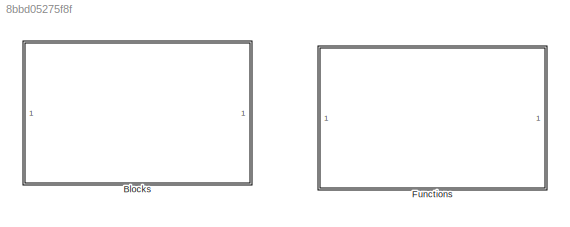
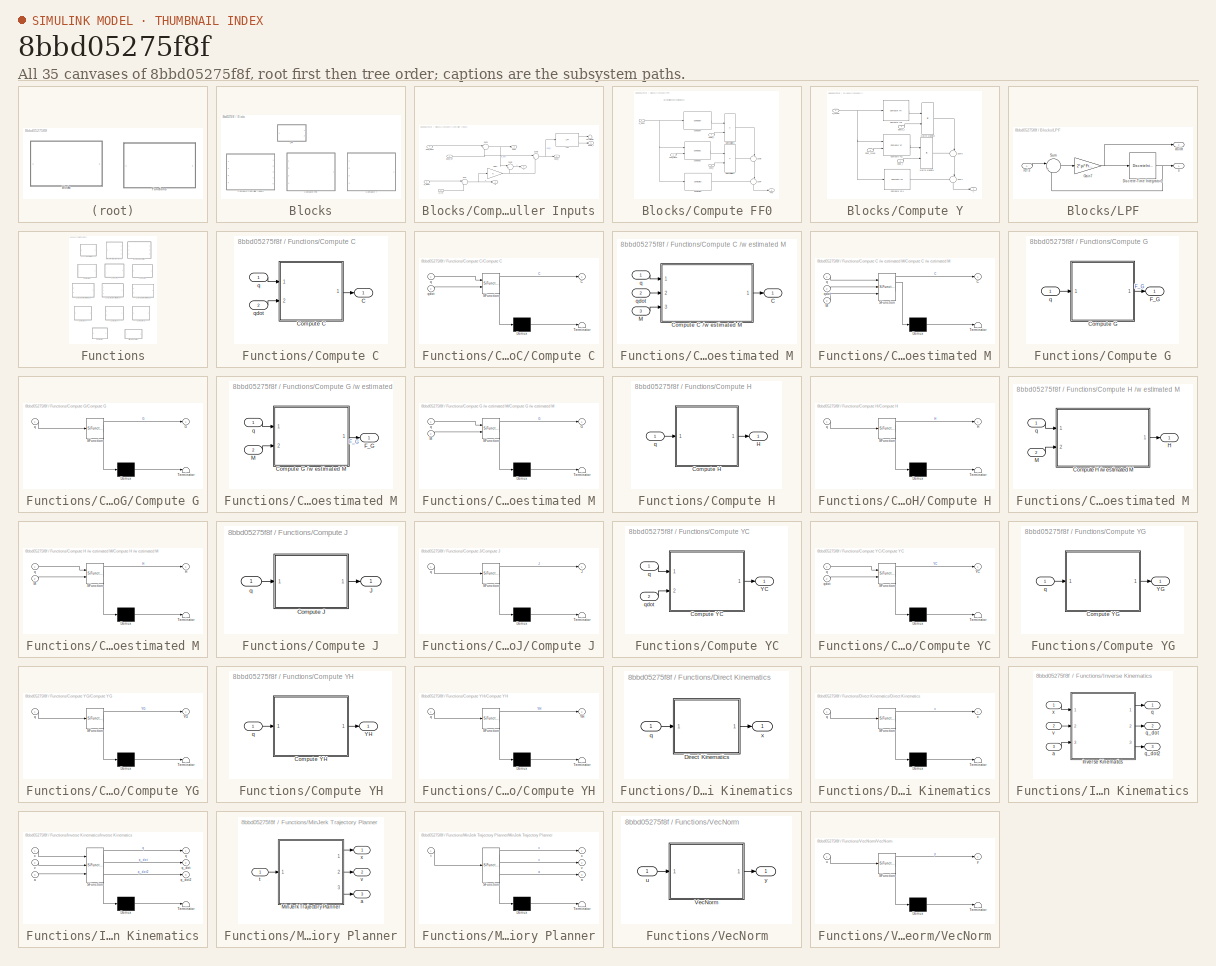
[diagram: thumbnail index - all 35 canvases of the model, root first then tree order]
MODEL slx_8bbd05275f8f
KIND library
CONFIG AbsTol = auto
CONFIG EnableMultiTasking = off
CONFIG FixedStep = auto
CONFIG MaxStep = auto
CONFIG MinStep = auto
CONFIG RelTol = 1e-3
CONFIG SampleTimeConstraint = Unconstrained
CONFIG SolverName = VariableStepAuto
CONFIG StartTime = 0.0
CONFIG StopTime = 10.0
BLOCK [SubSystem] Blocks
  Ports = []
  RequestExecContextInheritance = off
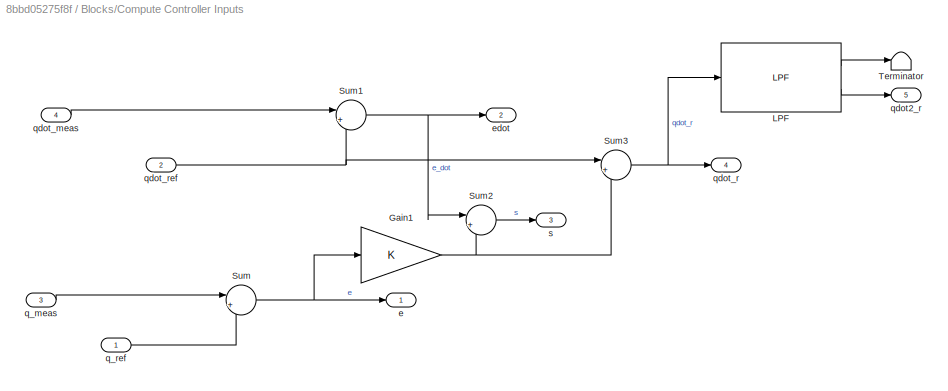
BLOCK [SubSystem] Blocks/Compute Controller Inputs
  Ports = [4, 5]
  RequestExecContextInheritance = off
  TreatAsAtomicUnit = on
BLOCK [Gain] Blocks/Compute Controller Inputs/Gain1
  Gain = K
  Multiplication = Matrix(K*u)
BLOCK [Reference] Blocks/Compute Controller Inputs/LPF  REF=$bdroot/Blocks/LPF
  Ports = [1, 2]
  SourceBlock = $bdroot/Blocks/LPF
BLOCK [Sum] Blocks/Compute Controller Inputs/Sum
  Inputs = |+-
  Ports = [2, 1]
BLOCK [Sum] Blocks/Compute Controller Inputs/Sum1
  Inputs = |+-
  Ports = [2, 1]
BLOCK [Sum] Blocks/Compute Controller Inputs/Sum2
  Inputs = |++
  Ports = [2, 1]
BLOCK [Sum] Blocks/Compute Controller Inputs/Sum3
  Inputs = |+-
  Ports = [2, 1]
BLOCK [Terminator] Blocks/Compute Controller Inputs/Terminator
BLOCK [Outport] Blocks/Compute Controller Inputs/e
BLOCK [Outport] Blocks/Compute Controller Inputs/edot
  Port = 2
BLOCK [Inport] Blocks/Compute Controller Inputs/q_meas
  Port = 3
  PortDimensions = 3
BLOCK [Inport] Blocks/Compute Controller Inputs/q_ref
  PortDimensions = 3
BLOCK [Outport] Blocks/Compute Controller Inputs/qdot2_r
  Port = 5
BLOCK [Inport] Blocks/Compute Controller Inputs/qdot_meas
  Port = 4
  PortDimensions = 3
BLOCK [Outport] Blocks/Compute Controller Inputs/qdot_r
  Port = 4
BLOCK [Inport] Blocks/Compute Controller Inputs/qdot_ref
  Port = 2
  PortDimensions = 3
BLOCK [Outport] Blocks/Compute Controller Inputs/s
  Port = 3
BLOCK [SubSystem] Blocks/Compute FF0
  Ports = [4, 1]
  RequestExecContextInheritance = off
  TreatAsAtomicUnit = on
BLOCK [Reference] Blocks/Compute FF0/Compute C  REF=$bdroot/Functions/Compute C
  Ports = [2, 1]
  SourceBlock = $bdroot/Functions/Compute C
BLOCK [Reference] Blocks/Compute FF0/Compute G  REF=$bdroot/Functions/Compute G
  Ports = [1, 1]
  SourceBlock = $bdroot/Functions/Compute G
BLOCK [Reference] Blocks/Compute FF0/Compute H  REF=$bdroot/Functions/Compute H
  Ports = [1, 1]
  SourceBlock = $bdroot/Functions/Compute H
BLOCK [Outport] Blocks/Compute FF0/FF0
BLOCK [Product] Blocks/Compute FF0/Matrix Multiply1
  Multiplication = Matrix(*)
  Ports = [2, 1]
BLOCK [Product] Blocks/Compute FF0/Matrix Multiply2
  Multiplication = Matrix(*)
  Ports = [2, 1]
BLOCK [Sum] Blocks/Compute FF0/Sum4
  Inputs = ++|
  NameLocation = left
  Ports = [2, 1]
BLOCK [Sum] Blocks/Compute FF0/Sum5
  Inputs = ++|
  NameLocation = left
  Ports = [2, 1]
BLOCK [Inport] Blocks/Compute FF0/q_meas
BLOCK [Inport] Blocks/Compute FF0/qdot2_r
  Port = 4
BLOCK [Inport] Blocks/Compute FF0/qdot_meas
  Port = 2
BLOCK [Inport] Blocks/Compute FF0/qdot_r
  Port = 3
BLOCK [SubSystem] Blocks/Compute Y
  Ports = [4, 1]
  RequestExecContextInheritance = off
  TreatAsAtomicUnit = on
BLOCK [Reference] Blocks/Compute Y/Compute YC1  REF=$bdroot/Functions/Compute YC
  Ports = [2, 1]
  SourceBlock = $bdroot/Functions/Compute YC
BLOCK [Reference] Blocks/Compute Y/Compute YG1  REF=$bdroot/Functions/Compute YG
  Ports = [1, 1]
  SourceBlock = $bdroot/Functions/Compute YG
BLOCK [Reference] Blocks/Compute Y/Compute YH1  REF=$bdroot/Functions/Compute YH
  Ports = [1, 1]
  SourceBlock = $bdroot/Functions/Compute YH
BLOCK [Product] Blocks/Compute Y/Matrix Multiply1
  Multiplication = Matrix(*)
  Ports = [2, 1]
BLOCK [Product] Blocks/Compute Y/Matrix Multiply2
  Multiplication = Matrix(*)
  Ports = [2, 1]
BLOCK [Sum] Blocks/Compute Y/Sum4
  Inputs = ++|
  NameLocation = left
  Ports = [2, 1]
BLOCK [Sum] Blocks/Compute Y/Sum5
  Inputs = ++|
  NameLocation = left
  Ports = [2, 1]
BLOCK [Outport] Blocks/Compute Y/Y
BLOCK [Inport] Blocks/Compute Y/q_meas
BLOCK [Inport] Blocks/Compute Y/qdot2_r
  Port = 4
BLOCK [Inport] Blocks/Compute Y/qdot_meas
  Port = 2
BLOCK [Inport] Blocks/Compute Y/qdot_r
  Port = 3
BLOCK [SubSystem] Blocks/LPF
  Ports = [1, 2]
  RequestExecContextInheritance = off
BLOCK [DiscreteIntegrator] Blocks/LPF/Discrete-Time Integrator1
  ICPrevOutput = DiscIntNeverNeededParam
  ICPrevScaledInput = DiscIntNeverNeededParam
  InitialCondition = s0
  InitialConditionSetting = Auto
  Ports = [1, 1]
  SampleTime = -1
BLOCK [Gain] Blocks/LPF/Gain7
  Gain = 2*pi*Freq
BLOCK [Sum] Blocks/LPF/Sum
  Inputs = |+-
  Ports = [2, 1]
BLOCK [Outport] Blocks/LPF/ds//dt
  Port = 2
  VectorParamsAs1DForOutWhenUnconnected = off
BLOCK [Inport] Blocks/LPF/ref s
BLOCK [Outport] Blocks/LPF/s
  VectorParamsAs1DForOutWhenUnconnected = off
BLOCK [SubSystem] Functions
  Ports = []
  RequestExecContextInheritance = off
BLOCK [SubSystem] Functions/Compute C
  Ports = [2, 1]
  RequestExecContextInheritance = off
BLOCK [SubSystem] Functions/Compute C //w estimated M
  Ports = [3, 1]
  RequestExecContextInheritance = off
BLOCK [Outport] Functions/Compute C //w estimated M/C
BLOCK [SubSystem] Functions/Compute C //w estimated M/Compute C //w estimated M
  ErrorFcn = Stateflow.Translate.translate
  PermitHierarchicalResolution = ExplicitOnly
  Ports = [3, 1]
  RequestExecContextInheritance = off
  SFBlockType = MATLAB Function
  TreatAsAtomicUnit = on
BLOCK [Demux] Functions/Compute C //w estimated M/Compute C //w estimated M/ Demux 
  Outputs = 1
  Ports = [1, 1]
BLOCK [S-Function] Functions/Compute C //w estimated M/Compute C //w estimated M/ SFunction 
  EnableBusSupport = off
  FunctionName = sf_sfun
  PortCounts = [3 2]
  Ports = [3, 2]
  SFcnIsStateOwnerBlock = off
  SFunctionDeploymentMode = off
  Tag = Stateflow S-Function 3
BLOCK [Terminator] Functions/Compute C //w estimated M/Compute C //w estimated M/ Terminator 
BLOCK [Outport] Functions/Compute C //w estimated M/Compute C //w estimated M/C
BLOCK [Inport] Functions/Compute C //w estimated M/Compute C //w estimated M/M
  Port = 3
BLOCK [Inport] Functions/Compute C //w estimated M/Compute C //w estimated M/q
BLOCK [Inport] Functions/Compute C //w estimated M/Compute C //w estimated M/qdot
  Port = 2
BLOCK [Inport] Functions/Compute C //w estimated M/M
  Port = 3
BLOCK [Inport] Functions/Compute C //w estimated M/q
BLOCK [Inport] Functions/Compute C //w estimated M/qdot
  Port = 2
BLOCK [Outport] Functions/Compute C/C
BLOCK [SubSystem] Functions/Compute C/Compute C
  ErrorFcn = Stateflow.Translate.translate
  PermitHierarchicalResolution = ExplicitOnly
  Ports = [2, 1]
  RequestExecContextInheritance = off
  SFBlockType = MATLAB Function
  TreatAsAtomicUnit = on
BLOCK [Demux] Functions/Compute C/Compute C/ Demux 
  Outputs = 1
  Ports = [1, 1]
BLOCK [S-Function] Functions/Compute C/Compute C/ SFunction 
  EnableBusSupport = off
  FunctionName = sf_sfun
  Parameters = M
  PortCounts = [2 2]
  Ports = [2, 2]
  SFcnIsStateOwnerBlock = off
  SFunctionDeploymentMode = off
  Tag = Stateflow S-Function 13
BLOCK [Terminator] Functions/Compute C/Compute C/ Terminator 
BLOCK [Outport] Functions/Compute C/Compute C/C
BLOCK [Inport] Functions/Compute C/Compute C/q
BLOCK [Inport] Functions/Compute C/Compute C/qdot
  Port = 2
BLOCK [Inport] Functions/Compute C/q
BLOCK [Inport] Functions/Compute C/qdot
  Port = 2
BLOCK [SubSystem] Functions/Compute G
  Ports = [1, 1]
  RequestExecContextInheritance = off
BLOCK [SubSystem] Functions/Compute G //w estimated M
  Ports = [2, 1]
  RequestExecContextInheritance = off
BLOCK [SubSystem] Functions/Compute G //w estimated M/Compute G //w estimated M
  ErrorFcn = Stateflow.Translate.translate
  PermitHierarchicalResolution = ExplicitOnly
  Ports = [2, 1]
  RequestExecContextInheritance = off
  SFBlockType = MATLAB Function
  TreatAsAtomicUnit = on
BLOCK [Demux] Functions/Compute G //w estimated M/Compute G //w estimated M/ Demux 
  Outputs = 1
  Ports = [1, 1]
BLOCK [S-Function] Functions/Compute G //w estimated M/Compute G //w estimated M/ SFunction 
  EnableBusSupport = off
  FunctionName = sf_sfun
  PortCounts = [2 2]
  Ports = [2, 2]
  SFcnIsStateOwnerBlock = off
  SFunctionDeploymentMode = off
  Tag = Stateflow S-Function 5
BLOCK [Terminator] Functions/Compute G //w estimated M/Compute G //w estimated M/ Terminator 
BLOCK [Outport] Functions/Compute G //w estimated M/Compute G //w estimated M/G
BLOCK [Inport] Functions/Compute G //w estimated M/Compute G //w estimated M/M
  Port = 2
BLOCK [Inport] Functions/Compute G //w estimated M/Compute G //w estimated M/q
BLOCK [Outport] Functions/Compute G //w estimated M/F_G
BLOCK [Inport] Functions/Compute G //w estimated M/M
  Port = 2
BLOCK [Inport] Functions/Compute G //w estimated M/q
BLOCK [SubSystem] Functions/Compute G/Compute G
  ErrorFcn = Stateflow.Translate.translate
  PermitHierarchicalResolution = ExplicitOnly
  Ports = [1, 1]
  RequestExecContextInheritance = off
  SFBlockType = MATLAB Function
  TreatAsAtomicUnit = on
BLOCK [Demux] Functions/Compute G/Compute G/ Demux 
  Outputs = 1
  Ports = [1, 1]
BLOCK [S-Function] Functions/Compute G/Compute G/ SFunction 
  EnableBusSupport = off
  FunctionName = sf_sfun
  Parameters = M
  PortCounts = [1 2]
  Ports = [1, 2]
  SFcnIsStateOwnerBlock = off
  SFunctionDeploymentMode = off
  Tag = Stateflow S-Function 14
BLOCK [Terminator] Functions/Compute G/Compute G/ Terminator 
BLOCK [Outport] Functions/Compute G/Compute G/G
BLOCK [Inport] Functions/Compute G/Compute G/q
BLOCK [Outport] Functions/Compute G/F_G
BLOCK [Inport] Functions/Compute G/q
BLOCK [SubSystem] Functions/Compute H
  Ports = [1, 1]
  RequestExecContextInheritance = off
BLOCK [SubSystem] Functions/Compute H //w estimated M
  Ports = [2, 1]
  RequestExecContextInheritance = off
BLOCK [SubSystem] Functions/Compute H //w estimated M/Compute H //w estimated M
  ErrorFcn = Stateflow.Translate.translate
  PermitHierarchicalResolution = ExplicitOnly
  Ports = [2, 1]
  RequestExecContextInheritance = off
  SFBlockType = MATLAB Function
  TreatAsAtomicUnit = on
BLOCK [Demux] Functions/Compute H //w estimated M/Compute H //w estimated M/ Demux 
  Outputs = 1
  Ports = [1, 1]
BLOCK [S-Function] Functions/Compute H //w estimated M/Compute H //w estimated M/ SFunction 
  EnableBusSupport = off
  FunctionName = sf_sfun
  PortCounts = [2 2]
  Ports = [2, 2]
  SFcnIsStateOwnerBlock = off
  SFunctionDeploymentMode = off
  Tag = Stateflow S-Function 6
BLOCK [Terminator] Functions/Compute H //w estimated M/Compute H //w estimated M/ Terminator 
BLOCK [Outport] Functions/Compute H //w estimated M/Compute H //w estimated M/H
BLOCK [Inport] Functions/Compute H //w estimated M/Compute H //w estimated M/M
  Port = 2
BLOCK [Inport] Functions/Compute H //w estimated M/Compute H //w estimated M/q
BLOCK [Outport] Functions/Compute H //w estimated M/H
BLOCK [Inport] Functions/Compute H //w estimated M/M
  Port = 2
BLOCK [Inport] Functions/Compute H //w estimated M/q
BLOCK [SubSystem] Functions/Compute H/Compute H
  ErrorFcn = Stateflow.Translate.translate
  PermitHierarchicalResolution = ExplicitOnly
  Ports = [1, 1]
  RequestExecContextInheritance = off
  SFBlockType = MATLAB Function
  TreatAsAtomicUnit = on
BLOCK [Demux] Functions/Compute H/Compute H/ Demux 
  Outputs = 1
  Ports = [1, 1]
BLOCK [S-Function] Functions/Compute H/Compute H/ SFunction 
  EnableBusSupport = off
  FunctionName = sf_sfun
  Parameters = M
  PortCounts = [1 2]
  Ports = [1, 2]
  SFcnIsStateOwnerBlock = off
  SFunctionDeploymentMode = off
  Tag = Stateflow S-Function 15
BLOCK [Terminator] Functions/Compute H/Compute H/ Terminator 
BLOCK [Outport] Functions/Compute H/Compute H/H
BLOCK [Inport] Functions/Compute H/Compute H/q
BLOCK [Outport] Functions/Compute H/H
BLOCK [Inport] Functions/Compute H/q
BLOCK [SubSystem] Functions/Compute J
  Ports = [1, 1]
  RequestExecContextInheritance = off
BLOCK [SubSystem] Functions/Compute J/Compute J
  ErrorFcn = Stateflow.Translate.translate
  PermitHierarchicalResolution = ExplicitOnly
  Ports = [1, 1]
  RequestExecContextInheritance = off
  SFBlockType = MATLAB Function
  TreatAsAtomicUnit = on
BLOCK [Demux] Functions/Compute J/Compute J/ Demux 
  Outputs = 1
  Ports = [1, 1]
BLOCK [S-Function] Functions/Compute J/Compute J/ SFunction 
  EnableBusSupport = off
  FunctionName = sf_sfun
  PortCounts = [1 2]
  Ports = [1, 2]
  SFcnIsStateOwnerBlock = off
  SFunctionDeploymentMode = off
  Tag = Stateflow S-Function 4
BLOCK [Terminator] Functions/Compute J/Compute J/ Terminator 
BLOCK [Outport] Functions/Compute J/Compute J/J
BLOCK [Inport] Functions/Compute J/Compute J/q
BLOCK [Outport] Functions/Compute J/J
BLOCK [Inport] Functions/Compute J/q
BLOCK [SubSystem] Functions/Compute YC
  Ports = [2, 1]
  RequestExecContextInheritance = off
BLOCK [SubSystem] Functions/Compute YC/Compute YC
  ErrorFcn = Stateflow.Translate.translate
  PermitHierarchicalResolution = ExplicitOnly
  Ports = [2, 1]
  RequestExecContextInheritance = off
  SFBlockType = MATLAB Function
  TreatAsAtomicUnit = on
BLOCK [Demux] Functions/Compute YC/Compute YC/ Demux 
  Outputs = 1
  Ports = [1, 1]
BLOCK [S-Function] Functions/Compute YC/Compute YC/ SFunction 
  EnableBusSupport = off
  FunctionName = sf_sfun
  PortCounts = [2 2]
  Ports = [2, 2]
  SFcnIsStateOwnerBlock = off
  SFunctionDeploymentMode = off
  Tag = Stateflow S-Function 9
BLOCK [Terminator] Functions/Compute YC/Compute YC/ Terminator 
BLOCK [Outport] Functions/Compute YC/Compute YC/YC
BLOCK [Inport] Functions/Compute YC/Compute YC/q
BLOCK [Inport] Functions/Compute YC/Compute YC/qdot
  Port = 2
BLOCK [Outport] Functions/Compute YC/YC
BLOCK [Inport] Functions/Compute YC/q
BLOCK [Inport] Functions/Compute YC/qdot
  Port = 2
BLOCK [SubSystem] Functions/Compute YG
  Ports = [1, 1]
  RequestExecContextInheritance = off
BLOCK [SubSystem] Functions/Compute YG/Compute YG
  ErrorFcn = Stateflow.Translate.translate
  PermitHierarchicalResolution = ExplicitOnly
  Ports = [1, 1]
  RequestExecContextInheritance = off
  SFBlockType = MATLAB Function
  TreatAsAtomicUnit = on
BLOCK [Demux] Functions/Compute YG/Compute YG/ Demux 
  Outputs = 1
  Ports = [1, 1]
BLOCK [S-Function] Functions/Compute YG/Compute YG/ SFunction 
  EnableBusSupport = off
  FunctionName = sf_sfun
  PortCounts = [1 2]
  Ports = [1, 2]
  SFcnIsStateOwnerBlock = off
  SFunctionDeploymentMode = off
  Tag = Stateflow S-Function 10
BLOCK [Terminator] Functions/Compute YG/Compute YG/ Terminator 
BLOCK [Outport] Functions/Compute YG/Compute YG/YG
BLOCK [Inport] Functions/Compute YG/Compute YG/q
BLOCK [Outport] Functions/Compute YG/YG
BLOCK [Inport] Functions/Compute YG/q
BLOCK [SubSystem] Functions/Compute YH
  Ports = [1, 1]
  RequestExecContextInheritance = off
BLOCK [SubSystem] Functions/Compute YH/Compute YH
  ErrorFcn = Stateflow.Translate.translate
  PermitHierarchicalResolution = ExplicitOnly
  Ports = [1, 1]
  RequestExecContextInheritance = off
  SFBlockType = MATLAB Function
  TreatAsAtomicUnit = on
BLOCK [Demux] Functions/Compute YH/Compute YH/ Demux 
  Outputs = 1
  Ports = [1, 1]
BLOCK [S-Function] Functions/Compute YH/Compute YH/ SFunction 
  EnableBusSupport = off
  FunctionName = sf_sfun
  PortCounts = [1 2]
  Ports = [1, 2]
  SFcnIsStateOwnerBlock = off
  SFunctionDeploymentMode = off
  Tag = Stateflow S-Function 7
BLOCK [Terminator] Functions/Compute YH/Compute YH/ Terminator 
BLOCK [Outport] Functions/Compute YH/Compute YH/YH
BLOCK [Inport] Functions/Compute YH/Compute YH/q
BLOCK [Outport] Functions/Compute YH/YH
BLOCK [Inport] Functions/Compute YH/q
BLOCK [SubSystem] Functions/Direct Kinematics
  Ports = [1, 1]
  RequestExecContextInheritance = off
BLOCK [SubSystem] Functions/Direct Kinematics/Direct Kinematics
  ErrorFcn = Stateflow.Translate.translate
  PermitHierarchicalResolution = ExplicitOnly
  Ports = [1, 1]
  RequestExecContextInheritance = off
  SFBlockType = MATLAB Function
  TreatAsAtomicUnit = on
BLOCK [Demux] Functions/Direct Kinematics/Direct Kinematics/ Demux 
  Outputs = 1
  Ports = [1, 1]
BLOCK [S-Function] Functions/Direct Kinematics/Direct Kinematics/ SFunction 
  EnableBusSupport = off
  FunctionName = sf_sfun
  PortCounts = [1 2]
  Ports = [1, 2]
  SFcnIsStateOwnerBlock = off
  SFunctionDeploymentMode = off
  Tag = Stateflow S-Function 8
BLOCK [Terminator] Functions/Direct Kinematics/Direct Kinematics/ Terminator 
BLOCK [Inport] Functions/Direct Kinematics/Direct Kinematics/q
BLOCK [Outport] Functions/Direct Kinematics/Direct Kinematics/x
BLOCK [Inport] Functions/Direct Kinematics/q
BLOCK [Outport] Functions/Direct Kinematics/x
BLOCK [SubSystem] Functions/Inverse Kinematics
  Ports = [3, 3]
  RequestExecContextInheritance = off
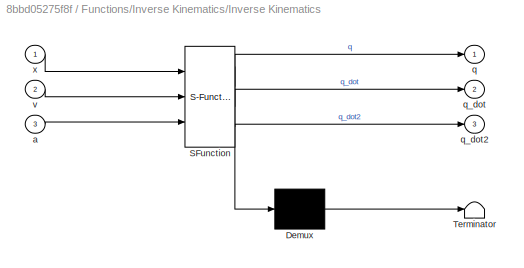
BLOCK [SubSystem] Functions/Inverse Kinematics/Inverse Kinematics
  ErrorFcn = Stateflow.Translate.translate
  PermitHierarchicalResolution = ExplicitOnly
  Ports = [3, 3]
  RequestExecContextInheritance = off
  SFBlockType = MATLAB Function
  TreatAsAtomicUnit = on
BLOCK [Demux] Functions/Inverse Kinematics/Inverse Kinematics/ Demux 
  Outputs = 1
  Ports = [1, 1]
BLOCK [S-Function] Functions/Inverse Kinematics/Inverse Kinematics/ SFunction 
  EnableBusSupport = off
  FunctionName = sf_sfun
  Parameters = H,L,elbows
  PortCounts = [3 4]
  Ports = [3, 4]
  SFcnIsStateOwnerBlock = off
  SFunctionDeploymentMode = off
  Tag = Stateflow S-Function 12
BLOCK [Terminator] Functions/Inverse Kinematics/Inverse Kinematics/ Terminator 
BLOCK [Inport] Functions/Inverse Kinematics/Inverse Kinematics/a
  Port = 3
BLOCK [Outport] Functions/Inverse Kinematics/Inverse Kinematics/q
BLOCK [Outport] Functions/Inverse Kinematics/Inverse Kinematics/q_dot
  Port = 2
BLOCK [Outport] Functions/Inverse Kinematics/Inverse Kinematics/q_dot2
  Port = 3
BLOCK [Inport] Functions/Inverse Kinematics/Inverse Kinematics/v
  Port = 2
BLOCK [Inport] Functions/Inverse Kinematics/Inverse Kinematics/x
BLOCK [Inport] Functions/Inverse Kinematics/a
  Port = 3
BLOCK [Outport] Functions/Inverse Kinematics/q
BLOCK [Outport] Functions/Inverse Kinematics/q_dot
  Port = 2
BLOCK [Outport] Functions/Inverse Kinematics/q_dot2
  Port = 3
BLOCK [Inport] Functions/Inverse Kinematics/v
  Port = 2
BLOCK [Inport] Functions/Inverse Kinematics/x
BLOCK [SubSystem] Functions/MinJerk Trajectory Planner
  Ports = [1, 3]
  RequestExecContextInheritance = off
BLOCK [SubSystem] Functions/MinJerk Trajectory Planner/MinJerk Trajectory Planner
  ErrorFcn = Stateflow.Translate.translate
  PermitHierarchicalResolution = ExplicitOnly
  Ports = [1, 3]
  RequestExecContextInheritance = off
  SFBlockType = MATLAB Function
  TreatAsAtomicUnit = on
BLOCK [Demux] Functions/MinJerk Trajectory Planner/MinJerk Trajectory Planner/ Demux 
  Outputs = 1
  Ports = [1, 1]
BLOCK [S-Function] Functions/MinJerk Trajectory Planner/MinJerk Trajectory Planner/ SFunction 
  EnableBusSupport = off
  FunctionName = sf_sfun
  Parameters = P0,Pf,T
  PortCounts = [1 4]
  Ports = [1, 4]
  SFcnIsStateOwnerBlock = off
  SFunctionDeploymentMode = off
  Tag = Stateflow S-Function 11
BLOCK [Terminator] Functions/MinJerk Trajectory Planner/MinJerk Trajectory Planner/ Terminator 
BLOCK [Outport] Functions/MinJerk Trajectory Planner/MinJerk Trajectory Planner/a
  Port = 3
BLOCK [Inport] Functions/MinJerk Trajectory Planner/MinJerk Trajectory Planner/t
BLOCK [Outport] Functions/MinJerk Trajectory Planner/MinJerk Trajectory Planner/v
  Port = 2
BLOCK [Outport] Functions/MinJerk Trajectory Planner/MinJerk Trajectory Planner/x
BLOCK [Outport] Functions/MinJerk Trajectory Planner/a
  Port = 3
BLOCK [Inport] Functions/MinJerk Trajectory Planner/t
BLOCK [Outport] Functions/MinJerk Trajectory Planner/v
  Port = 2
BLOCK [Outport] Functions/MinJerk Trajectory Planner/x
BLOCK [SubSystem] Functions/VecNorm
  Ports = [1, 1]
  RequestExecContextInheritance = off
BLOCK [SubSystem] Functions/VecNorm/VecNorm
  ErrorFcn = Stateflow.Translate.translate
  PermitHierarchicalResolution = ExplicitOnly
  Ports = [1, 1]
  RequestExecContextInheritance = off
  SFBlockType = MATLAB Function
  TreatAsAtomicUnit = on
BLOCK [Demux] Functions/VecNorm/VecNorm/ Demux 
  Outputs = 1
  Ports = [1, 1]
BLOCK [S-Function] Functions/VecNorm/VecNorm/ SFunction 
  EnableBusSupport = off
  FunctionName = sf_sfun
  PortCounts = [1 2]
  Ports = [1, 2]
  SFcnIsStateOwnerBlock = off
  SFunctionDeploymentMode = off
  Tag = Stateflow S-Function 1
BLOCK [Terminator] Functions/VecNorm/VecNorm/ Terminator 
BLOCK [Inport] Functions/VecNorm/VecNorm/u
BLOCK [Outport] Functions/VecNorm/VecNorm/y
BLOCK [Inport] Functions/VecNorm/u
BLOCK [Outport] Functions/VecNorm/y
ANNOTATION Blocks/Compute FF0: M == 0 in all these dynamic blocks
NET Blocks/Compute Controller Inputs/Gain1:1 -> Blocks/Compute Controller Inputs/Sum2:2, Blocks/Compute Controller Inputs/Sum3:2
LINE Blocks/Compute Controller Inputs/LPF:1 -> Blocks/Compute Controller Inputs/Terminator:1
LINE Blocks/Compute Controller Inputs/LPF:2 -> Blocks/Compute Controller Inputs/qdot2_r:1
NET Blocks/Compute Controller Inputs/Sum1:1 -> Blocks/Compute Controller Inputs/Sum2:1, Blocks/Compute Controller Inputs/edot:1
LINE Blocks/Compute Controller Inputs/Sum2:1 -> Blocks/Compute Controller Inputs/s:1
NET Blocks/Compute Controller Inputs/Sum3:1 -> Blocks/Compute Controller Inputs/LPF:1, Blocks/Compute Controller Inputs/qdot_r:1
NET Blocks/Compute Controller Inputs/Sum:1 -> Blocks/Compute Controller Inputs/Gain1:1, Blocks/Compute Controller Inputs/e:1
LINE Blocks/Compute Controller Inputs/q_meas:1 -> Blocks/Compute Controller Inputs/Sum:1
LINE Blocks/Compute Controller Inputs/q_ref:1 -> Blocks/Compute Controller Inputs/Sum:2
LINE Blocks/Compute Controller Inputs/qdot_meas:1 -> Blocks/Compute Controller Inputs/Sum1:1
NET Blocks/Compute Controller Inputs/qdot_ref:1 -> Blocks/Compute Controller Inputs/Sum1:2, Blocks/Compute Controller Inputs/Sum3:1
LINE Blocks/Compute FF0/Compute C:1 -> Blocks/Compute FF0/Matrix Multiply1:1
LINE Blocks/Compute FF0/Compute G:1 -> Blocks/Compute FF0/Sum4:1
LINE Blocks/Compute FF0/Compute H:1 -> Blocks/Compute FF0/Matrix Multiply2:1
LINE Blocks/Compute FF0/Matrix Multiply1:1 -> Blocks/Compute FF0/Sum5:1
LINE Blocks/Compute FF0/Matrix Multiply2:1 -> Blocks/Compute FF0/Sum5:2
LINE Blocks/Compute FF0/Sum4:1 -> Blocks/Compute FF0/FF0:1
LINE Blocks/Compute FF0/Sum5:1 -> Blocks/Compute FF0/Sum4:2
NET Blocks/Compute FF0/q_meas:1 -> Blocks/Compute FF0/Compute C:1, Blocks/Compute FF0/Compute G:1, Blocks/Compute FF0/Compute H:1
LINE Blocks/Compute FF0/qdot2_r:1 -> Blocks/Compute FF0/Matrix Multiply2:2
LINE Blocks/Compute FF0/qdot_meas:1 -> Blocks/Compute FF0/Compute C:2
LINE Blocks/Compute FF0/qdot_r:1 -> Blocks/Compute FF0/Matrix Multiply1:2
LINE Blocks/Compute Y/Compute YC1:1 -> Blocks/Compute Y/Matrix Multiply1:1
LINE Blocks/Compute Y/Compute YG1:1 -> Blocks/Compute Y/Sum4:1
LINE Blocks/Compute Y/Compute YH1:1 -> Blocks/Compute Y/Matrix Multiply2:1
LINE Blocks/Compute Y/Matrix Multiply1:1 -> Blocks/Compute Y/Sum5:1
LINE Blocks/Compute Y/Matrix Multiply2:1 -> Blocks/Compute Y/Sum5:2
LINE Blocks/Compute Y/Sum4:1 -> Blocks/Compute Y/Y:1
LINE Blocks/Compute Y/Sum5:1 -> Blocks/Compute Y/Sum4:2
NET Blocks/Compute Y/q_meas:1 -> Blocks/Compute Y/Compute YC1:1, Blocks/Compute Y/Compute YG1:1, Blocks/Compute Y/Compute YH1:1
LINE Blocks/Compute Y/qdot2_r:1 -> Blocks/Compute Y/Matrix Multiply2:2
LINE Blocks/Compute Y/qdot_meas:1 -> Blocks/Compute Y/Compute YC1:2
LINE Blocks/Compute Y/qdot_r:1 -> Blocks/Compute Y/Matrix Multiply1:2
NET Blocks/LPF/Discrete-Time Integrator1:1 -> Blocks/LPF/Sum:2, Blocks/LPF/s:1
NET Blocks/LPF/Gain7:1 -> Blocks/LPF/Discrete-Time Integrator1:1, Blocks/LPF/ds//dt:1
LINE Blocks/LPF/Sum:1 -> Blocks/LPF/Gain7:1
LINE Blocks/LPF/ref s:1 -> Blocks/LPF/Sum:1
LINE Functions/Compute C //w estimated M/Compute C //w estimated M:1 -> Functions/Compute C //w estimated M/C:1
LINE Functions/Compute C //w estimated M/M:1 -> Functions/Compute C //w estimated M/Compute C //w estimated M:3
LINE Functions/Compute C //w estimated M/q:1 -> Functions/Compute C //w estimated M/Compute C //w estimated M:1
LINE Functions/Compute C //w estimated M/qdot:1 -> Functions/Compute C //w estimated M/Compute C //w estimated M:2
LINE Functions/Compute C/Compute C:1 -> Functions/Compute C/C:1
LINE Functions/Compute C/q:1 -> Functions/Compute C/Compute C:1
LINE Functions/Compute C/qdot:1 -> Functions/Compute C/Compute C:2
LINE Functions/Compute G //w estimated M/Compute G //w estimated M:1 -> Functions/Compute G //w estimated M/F_G:1
LINE Functions/Compute G //w estimated M/M:1 -> Functions/Compute G //w estimated M/Compute G //w estimated M:2
LINE Functions/Compute G //w estimated M/q:1 -> Functions/Compute G //w estimated M/Compute G //w estimated M:1
LINE Functions/Compute G/Compute G:1 -> Functions/Compute G/F_G:1
LINE Functions/Compute G/q:1 -> Functions/Compute G/Compute G:1
LINE Functions/Compute H //w estimated M/Compute H //w estimated M:1 -> Functions/Compute H //w estimated M/H:1
LINE Functions/Compute H //w estimated M/M:1 -> Functions/Compute H //w estimated M/Compute H //w estimated M:2
LINE Functions/Compute H //w estimated M/q:1 -> Functions/Compute H //w estimated M/Compute H //w estimated M:1
LINE Functions/Compute H/Compute H:1 -> Functions/Compute H/H:1
LINE Functions/Compute H/q:1 -> Functions/Compute H/Compute H:1
LINE Functions/Compute J/Compute J:1 -> Functions/Compute J/J:1
LINE Functions/Compute J/q:1 -> Functions/Compute J/Compute J:1
LINE Functions/Compute YC/Compute YC:1 -> Functions/Compute YC/YC:1
LINE Functions/Compute YC/q:1 -> Functions/Compute YC/Compute YC:1
LINE Functions/Compute YC/qdot:1 -> Functions/Compute YC/Compute YC:2
LINE Functions/Compute YG/Compute YG:1 -> Functions/Compute YG/YG:1
LINE Functions/Compute YG/q:1 -> Functions/Compute YG/Compute YG:1
LINE Functions/Compute YH/Compute YH:1 -> Functions/Compute YH/YH:1
LINE Functions/Compute YH/q:1 -> Functions/Compute YH/Compute YH:1
LINE Functions/Direct Kinematics/Direct Kinematics:1 -> Functions/Direct Kinematics/x:1
LINE Functions/Direct Kinematics/q:1 -> Functions/Direct Kinematics/Direct Kinematics:1
LINE Functions/Inverse Kinematics/Inverse Kinematics:1 -> Functions/Inverse Kinematics/q:1
LINE Functions/Inverse Kinematics/Inverse Kinematics:2 -> Functions/Inverse Kinematics/q_dot:1
LINE Functions/Inverse Kinematics/Inverse Kinematics:3 -> Functions/Inverse Kinematics/q_dot2:1
LINE Functions/Inverse Kinematics/a:1 -> Functions/Inverse Kinematics/Inverse Kinematics:3
LINE Functions/Inverse Kinematics/v:1 -> Functions/Inverse Kinematics/Inverse Kinematics:2
LINE Functions/Inverse Kinematics/x:1 -> Functions/Inverse Kinematics/Inverse Kinematics:1
LINE Functions/MinJerk Trajectory Planner/MinJerk Trajectory Planner:1 -> Functions/MinJerk Trajectory Planner/x:1
LINE Functions/MinJerk Trajectory Planner/MinJerk Trajectory Planner:2 -> Functions/MinJerk Trajectory Planner/v:1
LINE Functions/MinJerk Trajectory Planner/MinJerk Trajectory Planner:3 -> Functions/MinJerk Trajectory Planner/a:1
LINE Functions/MinJerk Trajectory Planner/t:1 -> Functions/MinJerk Trajectory Planner/MinJerk Trajectory Planner:1
LINE Functions/VecNorm/VecNorm:1 -> Functions/VecNorm/y:1
LINE Functions/VecNorm/u:1 -> Functions/VecNorm/VecNorm:1
note: NET lines group one-source signal fan-out (src -> all destinations, sorted); 1:1 wires keep LINE
CHART Functions/Compute C/Compute C states=1 transitions=1
  STATE_LABEL 'eML_blk_kernel()'
  STATE_LABEL 'SCRIPT:\nfunction C = ComputeC(q,qdot,M)\nC=f_Cdyn(q,qdot,M);\nend\n'
CHART Functions/Compute G/Compute G states=1 transitions=1
  STATE_LABEL 'eML_blk_kernel()'
  STATE_LABEL 'SCRIPT:\nfunction G = ComputeG(q,M)\nG=f_Gdyn(q,M);\nend\n'
CHART Functions/Compute H/Compute H states=1 transitions=1
  STATE_LABEL 'eML_blk_kernel()'
  STATE_LABEL 'SCRIPT:\nfunction H = ComputeH(q,M)\nH=f_Hdyn(q,M);\nend\n'
CHART Functions/VecNorm/VecNorm states=1 transitions=1
  STATE_LABEL 'eML_blk_kernel()'
  STATE_LABEL 'SCRIPT:\nfunction y = vecNorm2(u)\ny=vecnorm(u,2);\n'
CHART Functions/Compute C
//w estimated M/Compute C
//w estimated M states=1 transitions=1
  STATE_LABEL 'eML_blk_kernel()'
  STATE_LABEL 'SCRIPT:\nfunction C = ComputeC_EstimatedM(q,qdot,M)\nC=f_Cdyn(q,qdot,M);\nend\n'
CHART Functions/Compute J/Compute J states=1 transitions=1
  STATE_LABEL 'eML_blk_kernel()'
  STATE_LABEL 'SCRIPT:\nfunction J = ComputeJ(q)\nJL=f_JL(q);\nJA=f_JA(q);\nJ=[JL;JA];\nend\n'
CHART Functions/Compute G
//w estimated M/Compute G
//w estimated M states=1 transitions=1
  STATE_LABEL 'eML_blk_kernel()'
  STATE_LABEL 'SCRIPT:\nfunction G = ComputeG_EstimatedM(q,M)\nG=f_Gdyn(q,M);\nend\n'
CHART Functions/Compute H
//w estimated M/Compute H
//w estimated M states=1 transitions=1
  STATE_LABEL 'eML_blk_kernel()'
  STATE_LABEL 'SCRIPT:\nfunction H = ComputeH_EstimatedM(q,M)\nH=f_Hdyn(q,M);\nend\n'
CHART Functions/Compute YH/Compute YH states=1 transitions=1
  STATE_LABEL 'eML_blk_kernel()'
  STATE_LABEL 'SCRIPT:\nfunction YH = ComputeYH(q)\nYH=f_YH(q);\nend\n'
CHART Functions/Direct Kinematics/Direct Kinematics states=1 transitions=1
  STATE_LABEL 'eML_blk_kernel()'
  STATE_LABEL 'SCRIPT:\nfunction x = DirectKinematics(q)\nf_A3t0=@(in1)reshape([cos(in1(1,:)),sin(in1(1,:)),0.0,0.0,-cos(in1(2,:)).*sin(in1(1,:)),cos(in1(1,:)).*cos(in1(2,:)),sin(in1(2,:)),0.0,sin(in1(1,:)).*sin(in1(2,:)),-cos(in1(1,:)).*sin(in1(2,:)),cos(in1(2,:)),0.0,cos(in1(1,:))./1.0e+1+in1(3,:).*sin(in1(1,:)).*sin(in1(2,:)),sin(in1(1,:))./1.0e+1-in1(3,:).*cos(in1(1,:)).*sin(in1(2,:)),in1(3,:).*cos(in1(2,:))+1...<+50ch>'
CHART Functions/Compute YC/Compute YC states=1 transitions=1
  STATE_LABEL 'eML_blk_kernel()'
  STATE_LABEL 'SCRIPT:\nfunction YC = ComputeYH(q,qdot)\nYC=f_YC(q,qdot);\nend\n'
CHART Functions/Compute YG/Compute YG states=1 transitions=1
  STATE_LABEL 'eML_blk_kernel()'
  STATE_LABEL 'SCRIPT:\nfunction YG = ComputeYG(q)\nYG=f_YG(q);\nend\n'
CHART Functions/MinJerk Trajectory Planner/MinJerk Trajectory Planner states=1 transitions=1
  STATE_LABEL 'eML_blk_kernel()'
  STATE_LABEL 'SCRIPT:\nfunction [x,v,a] = t2xyz(t,P0,Pf,T)\nif t<T\n    dP=Pf-P0;\n    x=(10*(t/T)^3-15*(t/T)^4+6*(t/T)^5)*dP+P0;\n    v=(30*(t^2)/T^3-60*(t^3)/T^4+30*(t^4)/T^5)*dP;\n    a=(60*t/T^3-180*(t^2)/T^4+120*(t^3)/T^5)*dP;\nelse\n    x=Pf;\n    v=zeros(3,1);\n    a=zeros(3,1);\nend\n'
CHART Functions/Inverse Kinematics/Inverse Kinematics states=1 transitions=1
  STATE_LABEL 'eML_blk_kernel()'
  STATE_LABEL 'SCRIPT:\nfunction [q,q_dot,q_dot2] = xyz2q(x,v,a,elbows,H,L)\nq=inverse_kin(x,H,L,elbows);\n\nJL=f_JL(q);\nq_dot=linsolve((JL),v);\n\nJL_dot=f_JLdot(q,q_dot);\nq_dot2=linsolve(JL,a-JL_dot*q_dot);\nend\n\nfunction q=inverse_kin(x,H,L,elbows)\nt2_elbow=elbows(1);\nd3_elbow=elbows(2);\nq=zeros(3,size(x,2));\nfor i=1:size(x,2)\n    %Parse\n    Px=x(1,i);\n    Py=x(2,i);\n    Pz=x(3,i);\n    %Compute d3\n    d3=d3_elbow*sq...<+297ch>'
CHART  states=0 transitions=0
CHART  states=0 transitions=0
CHART  states=0 transitions=0
CHART  states=0 transitions=0
CHART  states=0 transitions=0
CHART  states=0 transitions=0
CHART  states=0 transitions=0
CHART  states=0 transitions=0
CHART  states=0 transitions=0
CHART  states=0 transitions=0
CHART  states=0 transitions=0
CHART  states=0 transitions=0
CHART  states=0 transitions=0
CHART  states=0 transitions=0
